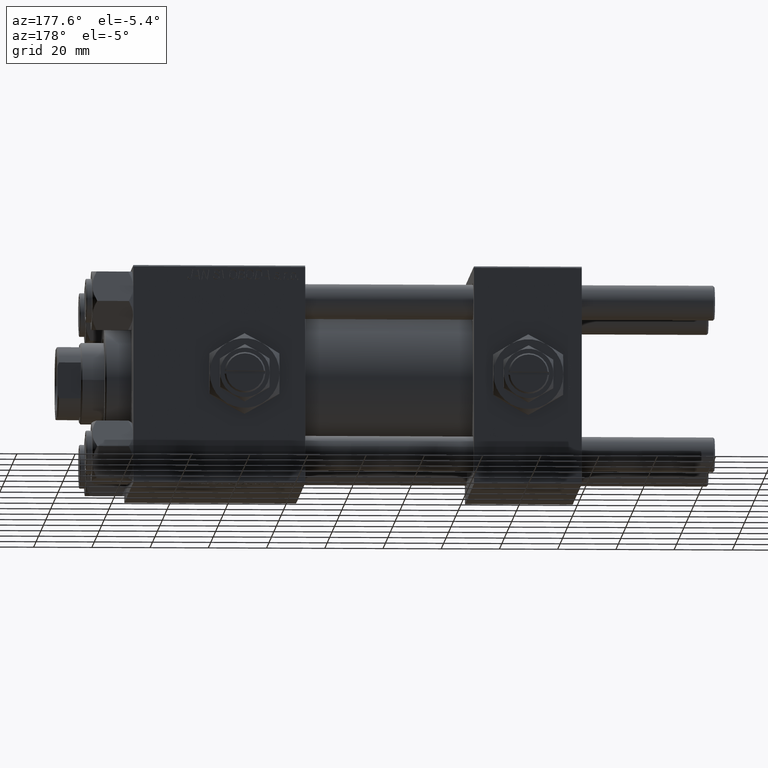
[diagram: clean part render]
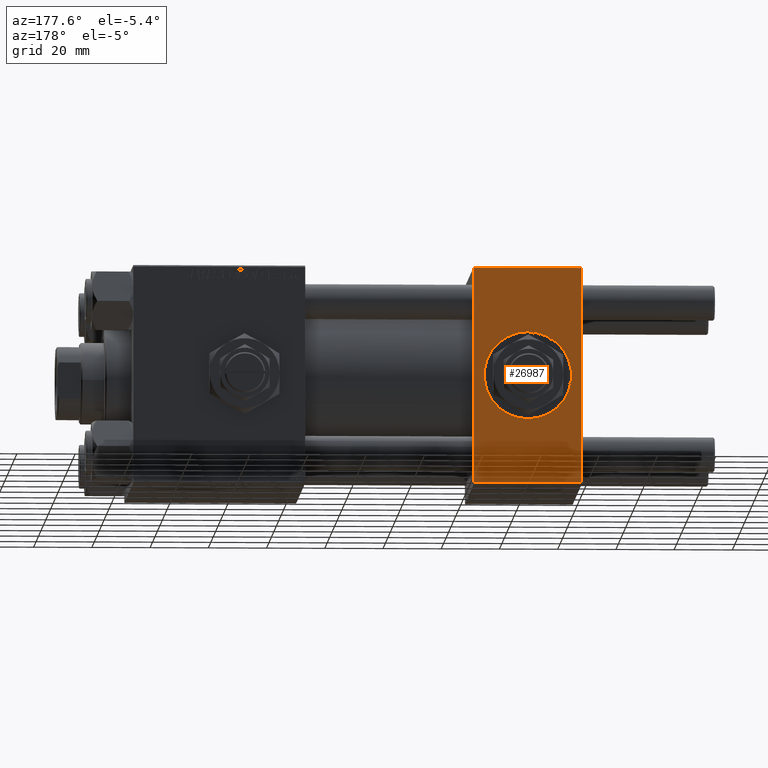
[diagram: same view with one face highlighted and labeled with its STEP entity id]
A machine part, auxiliary view. The second image highlights one B-rep face of the part: STEP entity #26987.
In plain terms, the highlighted planar face has unit normal (0, 1, 0).
Its self-contained STEP definition (entity closure, byte-faithful):
#1624 = EDGE_CURVE ( 'NONE', #11037, #26799, #9746, .T. ) ;
#2030 = ORIENTED_EDGE ( 'NONE', *, *, #24330, .F. ) ;
#2585 = DIRECTION ( 'NONE',  ( 0.000000000000000000, 1.000000000000000000, 0.000000000000000000 ) ) ;
#2591 = ORIENTED_EDGE ( 'NONE', *, *, #26866, .T. ) ;
#2764 = CARTESIAN_POINT ( 'NONE',  ( 37.00000000000000000, 37.49999999999999289, -36.99999999999998579 ) ) ;
#2915 = EDGE_CURVE ( 'NONE', #30358, #49157, #5022, .T. ) ;
#3112 = ORIENTED_EDGE ( 'NONE', *, *, #17851, .T. ) ;
#4405 = DIRECTION ( 'NONE',  ( 0.000000000000000000, 0.000000000000000000, 1.000000000000000000 ) ) ;
#5022 = LINE ( 'NONE', #28195, #41564 ) ;
#5113 = DIRECTION ( 'NONE',  ( -0.000000000000000000, 1.000000000000000000, 0.000000000000000000 ) ) ;
#5535 = LINE ( 'NONE', #21583, #52058 ) ;
#5626 = DIRECTION ( 'NONE',  ( 0.000000000000000000, -0.000000000000000000, 1.000000000000000000 ) ) ;
#7763 = LINE ( 'NONE', #2764, #44956 ) ;
#9527 = DIRECTION ( 'NONE',  ( 0.000000000000000000, 0.000000000000000000, 1.000000000000000000 ) ) ;
#9746 = LINE ( 'NONE', #25546, #12948 ) ;
#11037 = VERTEX_POINT ( 'NONE', #24497 ) ;
#11395 = CIRCLE ( 'NONE', #29060, 15.00000000000000178 ) ;
#12948 = VECTOR ( 'NONE', #45799, 1000.000000000000000 ) ;
#16961 = VERTEX_POINT ( 'NONE', #37442 ) ;
#17422 = CARTESIAN_POINT ( 'NONE',  ( 18.50000000000000000, 37.49999999999999289, 0.000000000000000000 ) ) ;
#17851 = EDGE_CURVE ( 'NONE', #11037, #30358, #5535, .T. ) ;
#17984 = FACE_OUTER_BOUND ( 'NONE', #35470, .T. ) ;
#20551 = DIRECTION ( 'NONE',  ( 0.000000000000000000, 0.000000000000000000, -1.000000000000000000 ) ) ;
#21583 = CARTESIAN_POINT ( 'NONE',  ( 37.00000000000000000, 37.49999999999999289, 37.00000000000000000 ) ) ;
#24330 = EDGE_CURVE ( 'NONE', #16961, #34173, #51537, .T. ) ;
#24497 = CARTESIAN_POINT ( 'NONE',  ( 0.000000000000000000, 37.49999999999999289, 37.00000000000000000 ) ) ;
#25546 = CARTESIAN_POINT ( 'NONE',  ( 0.000000000000000000, 37.49999999999999289, 37.50000000000000000 ) ) ;
#25651 = AXIS2_PLACEMENT_3D ( 'NONE', #50091, #5113, #5626 ) ;
#26065 = DIRECTION ( 'NONE',  ( 1.000000000000000000, 0.000000000000000000, 0.000000000000000000 ) ) ;
#26799 = VERTEX_POINT ( 'NONE', #41738 ) ;
#26866 = EDGE_CURVE ( 'NONE', #49157, #26799, #7763, .T. ) ;
#26987 = ADVANCED_FACE ( 'NONE', ( #33798, #17984 ), #29581, .T. ) ;
#27593 = CARTESIAN_POINT ( 'NONE',  ( 18.50000000000000000, 37.49999999999999289, 15.00000000000000178 ) ) ;
#28097 = CARTESIAN_POINT ( 'NONE',  ( 18.50000000000000000, 37.49999999999999289, 0.000000000000000000 ) ) ;
#28195 = CARTESIAN_POINT ( 'NONE',  ( 37.00000000000000000, 37.49999999999999289, 37.50000000000000000 ) ) ;
#28842 = AXIS2_PLACEMENT_3D ( 'NONE', #28097, #49133, #4405 ) ;
#29060 = AXIS2_PLACEMENT_3D ( 'NONE', #17422, #2585, #9527 ) ;
#29581 = PLANE ( 'NONE',  #25651 ) ;
#30358 = VERTEX_POINT ( 'NONE', #40691 ) ;
#32788 = EDGE_CURVE ( 'NONE', #34173, #16961, #11395, .T. ) ;
#33798 = FACE_BOUND ( 'NONE', #36905, .T. ) ;
#34173 = VERTEX_POINT ( 'NONE', #27593 ) ;
#35140 = DIRECTION ( 'NONE',  ( -1.000000000000000000, 0.000000000000000000, 0.000000000000000000 ) ) ;
#35470 = EDGE_LOOP ( 'NONE', ( #44177, #2591, #47116, #3112 ) ) ;
#36593 = CARTESIAN_POINT ( 'NONE',  ( 37.00000000000000000, 37.49999999999999289, -36.99999999999998579 ) ) ;
#36905 = EDGE_LOOP ( 'NONE', ( #48033, #2030 ) ) ;
#37442 = CARTESIAN_POINT ( 'NONE',  ( 18.50000000000000355, 37.49999999999999289, -15.00000000000000178 ) ) ;
#40691 = CARTESIAN_POINT ( 'NONE',  ( 37.00000000000000000, 37.49999999999999289, 37.00000000000000000 ) ) ;
#41564 = VECTOR ( 'NONE', #20551, 1000.000000000000000 ) ;
#41738 = CARTESIAN_POINT ( 'NONE',  ( 0.000000000000000000, 37.49999999999999289, -36.99999999999998579 ) ) ;
#44177 = ORIENTED_EDGE ( 'NONE', *, *, #2915, .T. ) ;
#44956 = VECTOR ( 'NONE', #35140, 1000.000000000000000 ) ;
#45799 = DIRECTION ( 'NONE',  ( 0.000000000000000000, 0.000000000000000000, -1.000000000000000000 ) ) ;
#47116 = ORIENTED_EDGE ( 'NONE', *, *, #1624, .F. ) ;
#48033 = ORIENTED_EDGE ( 'NONE', *, *, #32788, .F. ) ;
#49133 = DIRECTION ( 'NONE',  ( 0.000000000000000000, 1.000000000000000000, 0.000000000000000000 ) ) ;
#49157 = VERTEX_POINT ( 'NONE', #36593 ) ;
#50091 = CARTESIAN_POINT ( 'NONE',  ( 37.00000000000000000, 37.49999999999999289, 37.50000000000000000 ) ) ;
#51537 = CIRCLE ( 'NONE', #28842, 15.00000000000000178 ) ;
#52058 = VECTOR ( 'NONE', #26065, 1000.000000000000000 ) ;